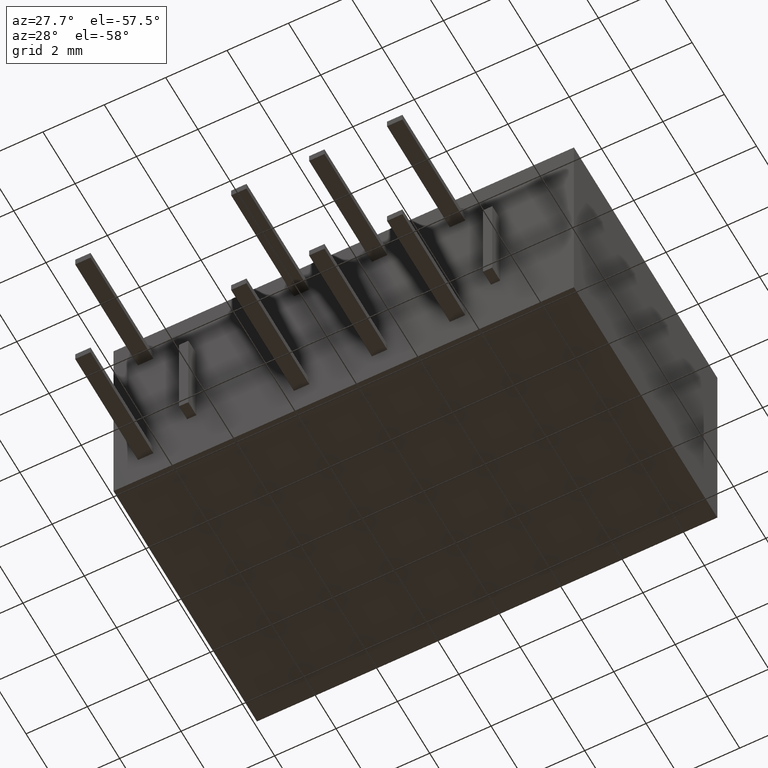
[diagram: clean part render]
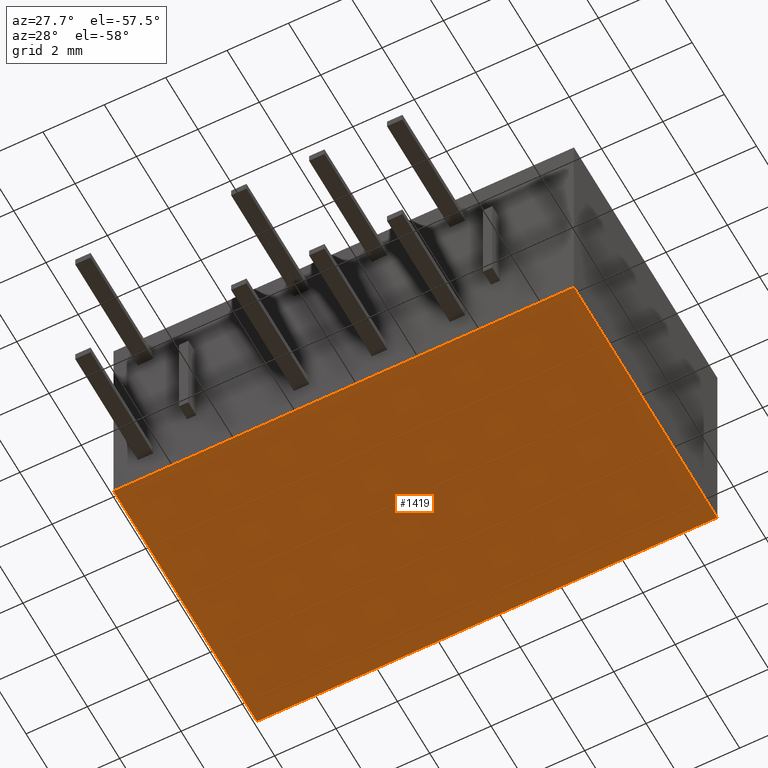
[diagram: same view with one face highlighted and labeled with its STEP entity id]
A machine part, auxiliary view. The second image highlights one B-rep face of the part: STEP entity #1419.
In plain terms, the highlighted planar face has unit normal (0, 0, 1).
Its self-contained STEP definition (entity closure, byte-faithful):
#90 = CARTESIAN_POINT ( 'NONE',  ( 0.0000000000000000000, 8.900000000000000400, -7.500000000000000000 ) ) ;
#246 = LINE ( 'NONE', #4403, #619 ) ;
#619 = VECTOR ( 'NONE', #2975, 1000.000000000000000 ) ;
#1154 = LINE ( 'NONE', #3414, #4878 ) ;
#1347 = ORIENTED_EDGE ( 'NONE', *, *, #3073, .T. ) ;
#1419 = ADVANCED_FACE ( 'NONE', ( #3030 ), #3016, .F. ) ;
#1458 = LINE ( 'NONE', #4480, #2474 ) ;
#1463 = DIRECTION ( 'NONE',  ( -0.0000000000000000000, -1.000000000000000000, -0.0000000000000000000 ) ) ;
#1515 = ORIENTED_EDGE ( 'NONE', *, *, #2305, .F. ) ;
#2305 = EDGE_CURVE ( 'NONE', #4700, #4677, #3666, .T. ) ;
#2347 = CARTESIAN_POINT ( 'NONE',  ( 15.00000000000000000, 0.0000000000000000000, -7.500000000000000000 ) ) ;
#2474 = VECTOR ( 'NONE', #1463, 1000.000000000000000 ) ;
#2549 = CARTESIAN_POINT ( 'NONE',  ( 15.00000000000000000, 8.900000000000000400, -7.500000000000000000 ) ) ;
#2587 = VERTEX_POINT ( 'NONE', #2549 ) ;
#2975 = DIRECTION ( 'NONE',  ( -1.000000000000000000, -0.0000000000000000000, -0.0000000000000000000 ) ) ;
#3016 = PLANE ( 'NONE',  #3644 ) ;
#3030 = FACE_OUTER_BOUND ( 'NONE', #4284, .T. ) ;
#3043 = DIRECTION ( 'NONE',  ( -1.000000000000000000, -0.0000000000000000000, -0.0000000000000000000 ) ) ;
#3065 = CARTESIAN_POINT ( 'NONE',  ( 0.0000000000000000000, 8.900000000000000400, -7.500000000000000000 ) ) ;
#3073 = EDGE_CURVE ( 'NONE', #4654, #4677, #246, .T. ) ;
#3259 = EDGE_CURVE ( 'NONE', #2587, #4700, #1154, .T. ) ;
#3346 = ORIENTED_EDGE ( 'NONE', *, *, #4601, .T. ) ;
#3414 = CARTESIAN_POINT ( 'NONE',  ( 0.0000000000000000000, 8.900000000000000400, -7.500000000000000000 ) ) ;
#3420 = DIRECTION ( 'NONE',  ( 1.000000000000000000, 0.0000000000000000000, -0.0000000000000000000 ) ) ;
#3447 = CARTESIAN_POINT ( 'NONE',  ( 0.0000000000000000000, 0.0000000000000000000, -7.500000000000000000 ) ) ;
#3644 = AXIS2_PLACEMENT_3D ( 'NONE', #3065, #4244, #3420 ) ;
#3666 = LINE ( 'NONE', #90, #3969 ) ;
#3942 = ORIENTED_EDGE ( 'NONE', *, *, #3259, .F. ) ;
#3969 = VECTOR ( 'NONE', #4239, 1000.000000000000000 ) ;
#4239 = DIRECTION ( 'NONE',  ( -0.0000000000000000000, -1.000000000000000000, -0.0000000000000000000 ) ) ;
#4244 = DIRECTION ( 'NONE',  ( 0.0000000000000000000, 0.0000000000000000000, 1.000000000000000000 ) ) ;
#4284 = EDGE_LOOP ( 'NONE', ( #1347, #1515, #3942, #3346 ) ) ;
#4403 = CARTESIAN_POINT ( 'NONE',  ( 0.0000000000000000000, 0.0000000000000000000, -7.500000000000000000 ) ) ;
#4480 = CARTESIAN_POINT ( 'NONE',  ( 15.00000000000000000, 8.900000000000000400, -7.500000000000000000 ) ) ;
#4601 = EDGE_CURVE ( 'NONE', #2587, #4654, #1458, .T. ) ;
#4654 = VERTEX_POINT ( 'NONE', #2347 ) ;
#4677 = VERTEX_POINT ( 'NONE', #3447 ) ;
#4700 = VERTEX_POINT ( 'NONE', #4969 ) ;
#4878 = VECTOR ( 'NONE', #3043, 1000.000000000000000 ) ;
#4969 = CARTESIAN_POINT ( 'NONE',  ( 0.0000000000000000000, 8.900000000000000400, -7.500000000000000000 ) ) ;